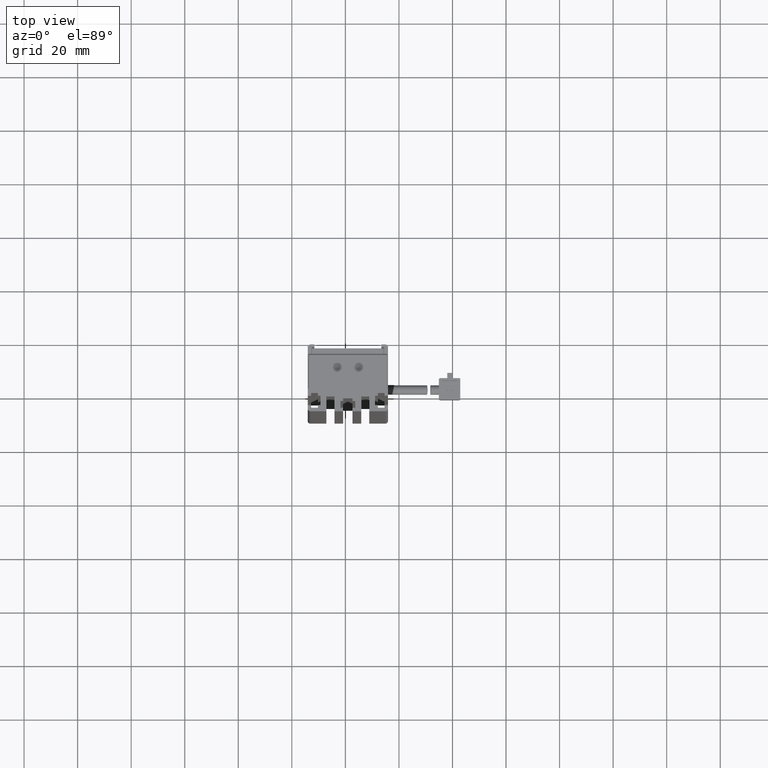
[diagram: clean part render]
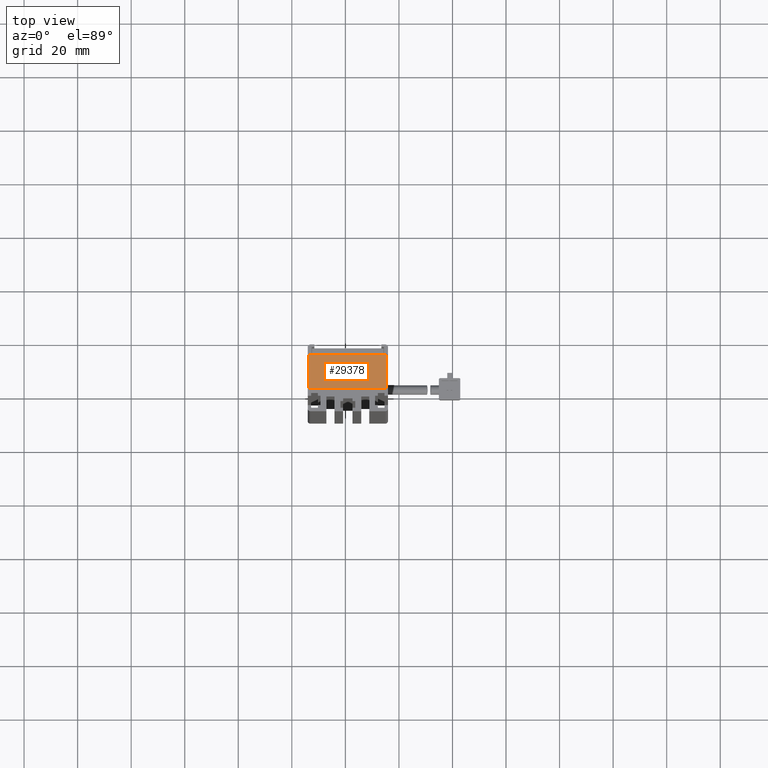
[diagram: same view with one face highlighted and labeled with its STEP entity id]
A machine part, top view. The second image highlights one B-rep face of the part: STEP entity #29378.
In plain terms, the highlighted planar face has unit normal (0, 0, 1).
Its self-contained STEP definition (entity closure, byte-faithful):
#272 = DIRECTION ( 'NONE',  ( -0.0000000000000000000, -0.0000000000000000000, -1.000000000000000000 ) ) ;
#527 = EDGE_LOOP ( 'NONE', ( #20831, #53337 ) ) ;
#817 = CIRCLE ( 'NONE', #51488, 1.700000000008916600 ) ;
#963 = VERTEX_POINT ( 'NONE', #34535 ) ;
#2508 = EDGE_LOOP ( 'NONE', ( #47913, #52810, #4418, #6200 ) ) ;
#3106 = FACE_OUTER_BOUND ( 'NONE', #2508, .T. ) ;
#4418 = ORIENTED_EDGE ( 'NONE', *, *, #50392, .T. ) ;
#5369 = AXIS2_PLACEMENT_3D ( 'NONE', #46257, #20631, #50538 ) ;
#5904 = DIRECTION ( 'NONE',  ( -0.0000000000000000000, -0.0000000000000000000, -1.000000000000000000 ) ) ;
#6046 = VERTEX_POINT ( 'NONE', #15591 ) ;
#6171 = VERTEX_POINT ( 'NONE', #6993 ) ;
#6200 = ORIENTED_EDGE ( 'NONE', *, *, #23546, .T. ) ;
#6383 = VECTOR ( 'NONE', #42449, 1000.000000000000000 ) ;
#6959 = EDGE_CURVE ( 'NONE', #19424, #6171, #48023, .T. ) ;
#6993 = CARTESIAN_POINT ( 'NONE',  ( 43.22537974684514900, 27.19594479660386500, 18.00000000000012800 ) ) ;
#9820 = EDGE_LOOP ( 'NONE', ( #46541, #38254 ) ) ;
#11411 = VECTOR ( 'NONE', #20026, 1000.000000000000000 ) ;
#12429 = CARTESIAN_POINT ( 'NONE',  ( 40.92537974683541800, 19.19594479660386500, 18.00000000000012800 ) ) ;
#13160 = FACE_BOUND ( 'NONE', #9820, .T. ) ;
#14569 = CIRCLE ( 'NONE', #45605, 1.700000000008916600 ) ;
#15245 = VECTOR ( 'NONE', #46526, 1000.000000000000000 ) ;
#15591 = CARTESIAN_POINT ( 'NONE',  ( 38.62537974684433800, 27.19594479660386500, 18.00000000000012800 ) ) ;
#16133 = CARTESIAN_POINT ( 'NONE',  ( 26.42537974683542900, 19.19594479660386500, 18.00000000000013100 ) ) ;
#19424 = VERTEX_POINT ( 'NONE', #38301 ) ;
#20026 = DIRECTION ( 'NONE',  ( -1.000000000000000000, -0.0000000000000000000, -0.0000000000000000000 ) ) ;
#20631 = DIRECTION ( 'NONE',  ( -0.0000000000000000000, -0.0000000000000000000, -1.000000000000000000 ) ) ;
#20831 = ORIENTED_EDGE ( 'NONE', *, *, #23496, .T. ) ;
#22206 = CIRCLE ( 'NONE', #5369, 1.699999999990264900 ) ;
#22483 = EDGE_CURVE ( 'NONE', #45491, #42461, #25310, .T. ) ;
#23373 = CARTESIAN_POINT ( 'NONE',  ( 40.92537974683541800, 25.69594479660386500, 18.00000000000012800 ) ) ;
#23496 = EDGE_CURVE ( 'NONE', #6046, #963, #14569, .T. ) ;
#23546 = EDGE_CURVE ( 'NONE', #42868, #24044, #47451, .T. ) ;
#23698 = AXIS2_PLACEMENT_3D ( 'NONE', #23373, #53194, #27668 ) ;
#23737 = CARTESIAN_POINT ( 'NONE',  ( 55.42537974683541800, 25.69594479660386500, 18.00000000000012800 ) ) ;
#24044 = VERTEX_POINT ( 'NONE', #26649 ) ;
#25310 = LINE ( 'NONE', #53889, #15245 ) ;
#25901 = CARTESIAN_POINT ( 'NONE',  ( 36.92537974683541800, 27.19594479660386500, 18.00000000000012800 ) ) ;
#26649 = CARTESIAN_POINT ( 'NONE',  ( 55.42537974683541800, 31.69594479660386500, 18.00000000000012800 ) ) ;
#27668 = DIRECTION ( 'NONE',  ( 1.000000000000000000, 0.0000000000000000000, 0.0000000000000000000 ) ) ;
#28039 = EDGE_CURVE ( 'NONE', #963, #6046, #817, .T. ) ;
#29208 = LINE ( 'NONE', #12429, #6383 ) ;
#29378 = ADVANCED_FACE ( 'NONE', ( #3106, #13160, #47338 ), #36057, .T. ) ;
#30041 = CARTESIAN_POINT ( 'NONE',  ( 26.42537974683541800, 31.69594479660386500, 18.00000000000012800 ) ) ;
#30218 = DIRECTION ( 'NONE',  ( 1.000000000000000000, 0.0000000000000000000, 0.0000000000000000000 ) ) ;
#31558 = CARTESIAN_POINT ( 'NONE',  ( 36.92537974683541800, 27.19594479660386500, 18.00000000000012800 ) ) ;
#34535 = CARTESIAN_POINT ( 'NONE',  ( 35.22537974682650500, 27.19594479660386500, 18.00000000000012800 ) ) ;
#35722 = CARTESIAN_POINT ( 'NONE',  ( 55.42537974683541800, 19.19594479660386500, 18.00000000000013100 ) ) ;
#35875 = DIRECTION ( 'NONE',  ( 1.000000000000000000, 0.0000000000000000000, 0.0000000000000000000 ) ) ;
#36057 = PLANE ( 'NONE',  #23698 ) ;
#37873 = EDGE_CURVE ( 'NONE', #24044, #45491, #44296, .T. ) ;
#38254 = ORIENTED_EDGE ( 'NONE', *, *, #42560, .T. ) ;
#38301 = CARTESIAN_POINT ( 'NONE',  ( 46.62537974682567900, 27.19594479660386500, 18.00000000000012800 ) ) ;
#42449 = DIRECTION ( 'NONE',  ( 1.000000000000000000, 0.0000000000000000000, 0.0000000000000000000 ) ) ;
#42461 = VERTEX_POINT ( 'NONE', #16133 ) ;
#42560 = EDGE_CURVE ( 'NONE', #6171, #19424, #22206, .T. ) ;
#42868 = VERTEX_POINT ( 'NONE', #35722 ) ;
#44296 = LINE ( 'NONE', #45624, #11411 ) ;
#45059 = DIRECTION ( 'NONE',  ( 0.0000000000000000000, 1.000000000000000000, 0.0000000000000000000 ) ) ;
#45313 = AXIS2_PLACEMENT_3D ( 'NONE', #55402, #55261, #55089 ) ;
#45491 = VERTEX_POINT ( 'NONE', #30041 ) ;
#45605 = AXIS2_PLACEMENT_3D ( 'NONE', #31558, #5904, #35875 ) ;
#45624 = CARTESIAN_POINT ( 'NONE',  ( 40.92537974683541800, 31.69594479660386500, 18.00000000000012800 ) ) ;
#46140 = VECTOR ( 'NONE', #45059, 1000.000000000000000 ) ;
#46257 = CARTESIAN_POINT ( 'NONE',  ( 44.92537974683541800, 27.19594479660386500, 18.00000000000012800 ) ) ;
#46526 = DIRECTION ( 'NONE',  ( -0.0000000000000000000, -1.000000000000000000, -0.0000000000000000000 ) ) ;
#46541 = ORIENTED_EDGE ( 'NONE', *, *, #6959, .T. ) ;
#47338 = FACE_BOUND ( 'NONE', #527, .T. ) ;
#47451 = LINE ( 'NONE', #23737, #46140 ) ;
#47913 = ORIENTED_EDGE ( 'NONE', *, *, #37873, .T. ) ;
#48023 = CIRCLE ( 'NONE', #45313, 1.699999999990264900 ) ;
#50392 = EDGE_CURVE ( 'NONE', #42461, #42868, #29208, .T. ) ;
#50538 = DIRECTION ( 'NONE',  ( 1.000000000000000000, 0.0000000000000000000, 0.0000000000000000000 ) ) ;
#51488 = AXIS2_PLACEMENT_3D ( 'NONE', #25901, #272, #30218 ) ;
#52810 = ORIENTED_EDGE ( 'NONE', *, *, #22483, .T. ) ;
#53194 = DIRECTION ( 'NONE',  ( 0.0000000000000000000, 0.0000000000000000000, 1.000000000000000000 ) ) ;
#53337 = ORIENTED_EDGE ( 'NONE', *, *, #28039, .T. ) ;
#53889 = CARTESIAN_POINT ( 'NONE',  ( 26.42537974683542500, 25.69594479660386500, 18.00000000000012800 ) ) ;
#55089 = DIRECTION ( 'NONE',  ( 1.000000000000000000, 0.0000000000000000000, 0.0000000000000000000 ) ) ;
#55261 = DIRECTION ( 'NONE',  ( -0.0000000000000000000, -0.0000000000000000000, -1.000000000000000000 ) ) ;
#55402 = CARTESIAN_POINT ( 'NONE',  ( 44.92537974683541800, 27.19594479660386500, 18.00000000000012800 ) ) ;